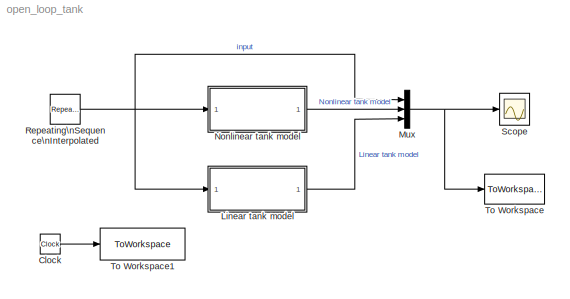
MODEL open_loop_tank
KIND model
BLOCK [Clock] Clock
  SID = 47
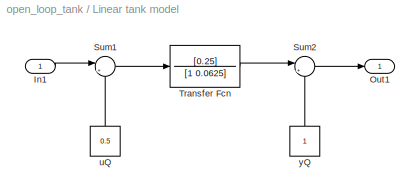
BLOCK [SubSystem] Linear tank model
  Ports = [1, 1]
  RequestExecContextInheritance = off
  SID = 34
BLOCK [Inport] Linear tank model/In1
  IconDisplay = Port number
  SID = 35
BLOCK [Outport] Linear tank model/Out1
  IconDisplay = Port number
  SID = 36
BLOCK [Sum] Linear tank model/Sum1
  IconShape = round
  InputSameDT = off
  Inputs = |+-
  OutDataTypeStr = Inherit: Inherit via internal rule
  Ports = [2, 1]
  SID = 42
  SaturateOnIntegerOverflow = off
BLOCK [Sum] Linear tank model/Sum2
  IconShape = round
  InputSameDT = off
  Inputs = |++
  OutDataTypeStr = Inherit: Inherit via internal rule
  Ports = [2, 1]
  SID = 43
  SaturateOnIntegerOverflow = off
BLOCK [TransferFcn] Linear tank model/Transfer Fcn
  Denominator = [1 0.0625]
  Numerator = [0.25]
  SID = 44
BLOCK [Constant] Linear tank model/uQ
  SID = 45
  Value = 0.5
BLOCK [Constant] Linear tank model/yQ
  SID = 46
BLOCK [Mux] Mux
  DisplayOption = bar
  Inputs = 3
  Ports = [3, 1]
  SID = 24
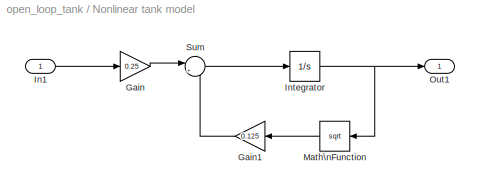
BLOCK [SubSystem] Nonlinear tank model
  Ports = [1, 1]
  RequestExecContextInheritance = off
  SID = 26
BLOCK [Gain] Nonlinear tank model/Gain
  Gain = 0.25
  OutDataTypeStr = Inherit: Inherit via internal rule
  ParamDataTypeStr = Inherit: Inherit via internal rule
  SID = 29
  SaturateOnIntegerOverflow = off
BLOCK [Gain] Nonlinear tank model/Gain1
  Gain = 0.125
  OutDataTypeStr = Inherit: Inherit via internal rule
  ParamDataTypeStr = Inherit: Inherit via internal rule
  SID = 30
  SaturateOnIntegerOverflow = off
BLOCK [Inport] Nonlinear tank model/In1
  IconDisplay = Port number
  SID = 27
BLOCK [Integrator] Nonlinear tank model/Integrator
  InitialCondition = 1
  Ports = [1, 1]
  SID = 31
BLOCK [Math] Nonlinear tank model/Math\nFunction
  Operator = sqrt
  Ports = [1, 1]
  SID = 32
BLOCK [Outport] Nonlinear tank model/Out1
  IconDisplay = Port number
  SID = 28
BLOCK [Sum] Nonlinear tank model/Sum
  IconShape = round
  InputSameDT = off
  Inputs = |+-
  OutDataTypeStr = Inherit: Inherit via internal rule
  Ports = [2, 1]
  SID = 33
  SaturateOnIntegerOverflow = off
BLOCK [Reference] Repeating\nSequence\nInterpolated  REF=simulink/Sources/Repeating\nSequence\nInterpolated
  LockScale = off
  LookUpMeth = Interpolation-Use End Values
  OutDataType = double
  OutDataTypeStr = double
  OutMax = []
  OutMin = []
  OutScaling = 2^-10
  OutValues = [0.4 0.6 0.3 0.7]
  OutputDataTypeScalingMode = double
  Ports = [0, 1]
  RTWMemSecDataConstants = Inherit from model
  RTWMemSecDataInternal = Inherit from model
  RTWMemSecDataParameters = Inherit from model
  RTWMemSecFuncExecute = Inherit from model
  RTWMemSecFuncInitTerm = Inherit from model
  SID = 16
  SourceBlock = simulink/Sources/Repeating\nSequence\nInterpolated
  SourceProductBaseCode = SL
  SourceProductName = Simulink
  SourceType = Repeating Sequence Interpolated
  TimeValues = [0 40 80 120]
  tsamp = -1
BLOCK [Scope] Scope
  Floating = off
  NumInputPorts = 1
  Ports = [1]
  SID = 1
  ScopeSpecificationString = Simulink.scopes.TimeScopeBlockCfg('CurrentConfiguration', extmgr.ConfigurationSet(extmgr.Configuration('Core','General UI',true),extmgr.Configuration('Core','Source UI',true),extmgr.Configuration('Sources','WiredSimulink',true,'DataLoggingSaveFormat','StructureWithTime','DataLoggingLimitDataPoints',true,'DataLoggingDecimation','1','DataLoggingDecimateData',true),extmgr.Configuration('Visuals','Tim...<+1679ch>
BLOCK [ToWorkspace] To Workspace
  MaxDataPoints = inf
  Ports = [1]
  SID = 25
  SampleTime = -1
  VariableName = OL
BLOCK [ToWorkspace] To Workspace1
  MaxDataPoints = inf
  Ports = [1]
  SID = 48
  SampleTime = -1
  VariableName = OL_time
LINE Clock:1 -> To Workspace1:1
LINE Linear tank model/In1:1 -> Linear tank model/Sum1:1
LINE Linear tank model/Sum1:1 -> Linear tank model/Transfer Fcn:1
LINE Linear tank model/Sum2:1 -> Linear tank model/Out1:1
LINE Linear tank model/Transfer Fcn:1 -> Linear tank model/Sum2:1
LINE Linear tank model/uQ:1 -> Linear tank model/Sum1:2
LINE Linear tank model/yQ:1 -> Linear tank model/Sum2:2
LINE Linear tank model:1 -> Mux:3
NET Mux:1 -> Scope:1, To Workspace:1
LINE Nonlinear tank model/Gain1:1 -> Nonlinear tank model/Sum:2
LINE Nonlinear tank model/Gain:1 -> Nonlinear tank model/Sum:1
LINE Nonlinear tank model/In1:1 -> Nonlinear tank model/Gain:1
NET Nonlinear tank model/Integrator:1 -> Nonlinear tank model/Math\nFunction:1, Nonlinear tank model/Out1:1
LINE Nonlinear tank model/Math\nFunction:1 -> Nonlinear tank model/Gain1:1
LINE Nonlinear tank model/Sum:1 -> Nonlinear tank model/Integrator:1
LINE Nonlinear tank model:1 -> Mux:2
NET Repeating\nSequence\nInterpolated:1 -> Linear tank model:1, Mux:1, Nonlinear tank model:1
note: NET lines group one-source signal fan-out (src -> all destinations, sorted); 1:1 wires keep LINE
